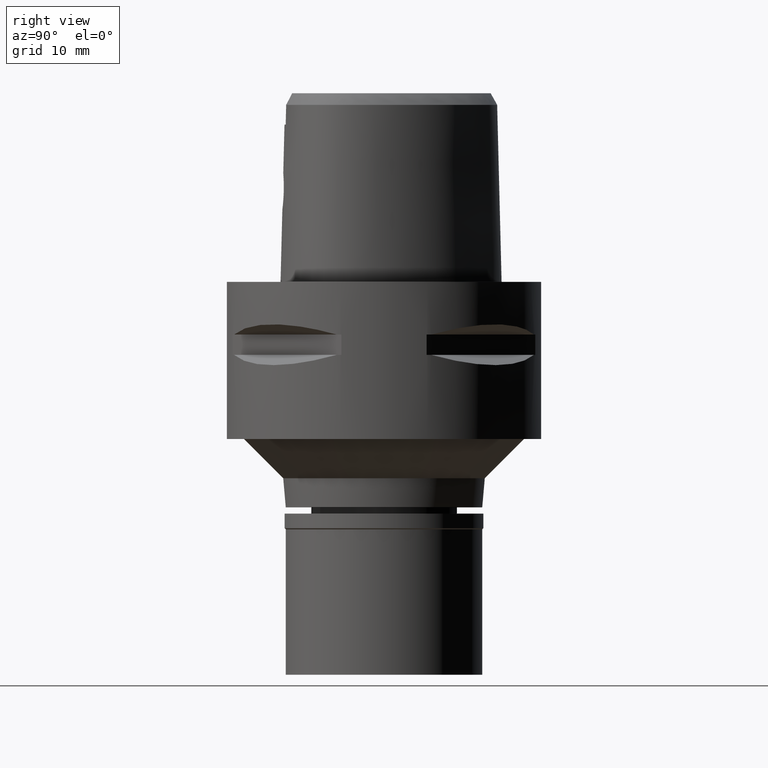
[diagram: clean part render]
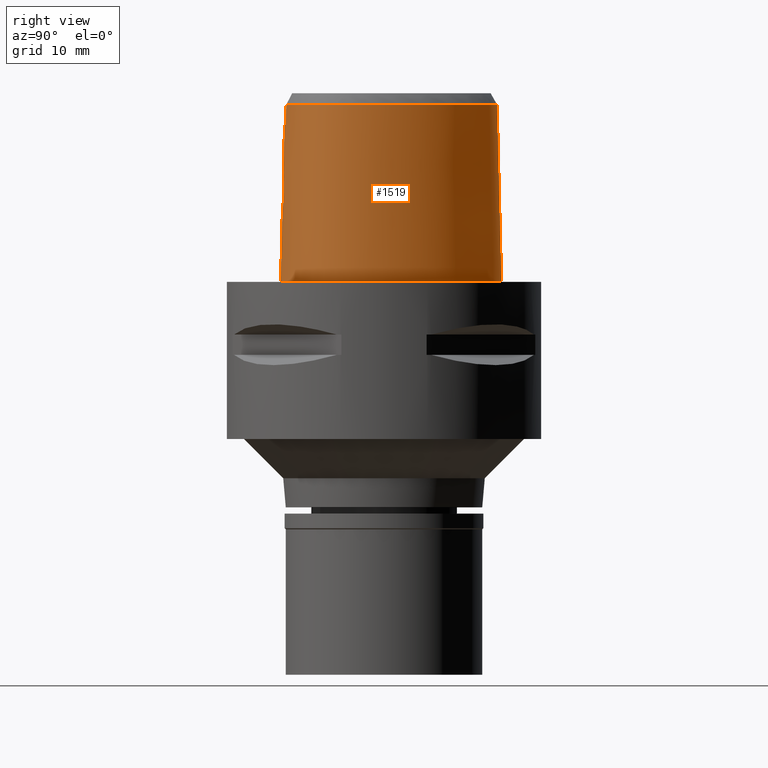
[diagram: same view with one face highlighted and labeled with its STEP entity id]
A machine part, right view. The second image highlights one B-rep face of the part: STEP entity #1519.
In plain terms, the highlighted face is a freeform B-spline surface patch.
Its self-contained STEP definition (entity closure, byte-faithful):
#6 = CARTESIAN_POINT ( 'NONE',  ( 1.645449367504256077, -12.77488553661844151, 13.10705414946526304 ) ) ;
#12 = VECTOR ( 'NONE', #1520, 1000.000000000000000 ) ;
#123 = CARTESIAN_POINT ( 'NONE',  ( 9.354901132059136870, -10.96475156047918276, 9.278273161166146477E-08 ) ) ;
#147 = CARTESIAN_POINT ( 'NONE',  ( 4.043386007319254460, -12.92392499770172165, 9.278273161166146477E-08 ) ) ;
#148 = ORIENTED_EDGE ( 'NONE', *, *, #325, .T. ) ;
#167 = CARTESIAN_POINT ( 'NONE',  ( 1.515894610913332219, 14.29262276005880494, 22.52071729251869314 ) ) ;
#170 = CARTESIAN_POINT ( 'NONE',  ( 2.295866016301516765, -12.76119921827123527, 11.35768768159920405 ) ) ;
#174 = CARTESIAN_POINT ( 'NONE',  ( 10.81142122104489545, -9.988463670041628717, 9.278273161166146477E-08 ) ) ;
#179 = CARTESIAN_POINT ( 'NONE',  ( 12.06000622300000025, -7.835334374217000075, 22.97118258146999992 ) ) ;
#190 = CARTESIAN_POINT ( 'NONE',  ( 10.46238780066888729, -9.543612998139410664, 22.52071729251869314 ) ) ;
#194 = CARTESIAN_POINT ( 'NONE',  ( 2.283291726770522168, -12.76615336162676861, 11.21397804798649567 ) ) ;
#200 = CARTESIAN_POINT ( 'NONE',  ( 13.04019920589999870, 2.897436282465999824, 7.356783964000999987 ) ) ;
#205 = CARTESIAN_POINT ( 'NONE',  ( 7.165542351178000757, -12.04243711982000065, -0.4504153447348000494 ) ) ;
#216 = CARTESIAN_POINT ( 'NONE',  ( 6.021703607729323338, 12.22251596526479389, 22.52071729251869314 ) ) ;
#222 = CARTESIAN_POINT ( 'NONE',  ( 1.030579243791999833, -12.61390748082000002, 22.97118258146999992 ) ) ;
#225 = CARTESIAN_POINT ( 'NONE',  ( 0.3814807434946000386, 14.79500491315999966, 7.356783964000999987 ) ) ;
#245 = CARTESIAN_POINT ( 'NONE',  ( 2.093435941504518283, -12.80154818977980646, 10.54659307499018617 ) ) ;
#271 = CARTESIAN_POINT ( 'NONE',  ( 2.225429295877777491, -12.75012210877847885, 12.08593180704479764 ) ) ;
#276 = CARTESIAN_POINT ( 'NONE',  ( 13.67906221776000031, -4.314970308252999764, 15.16398327273999946 ) ) ;
#286 = ORIENTED_EDGE ( 'NONE', *, *, #3007, .F. ) ;
#325 = EDGE_CURVE ( 'NONE', #766, #797, #754, .T. ) ;
#381 = CARTESIAN_POINT ( 'NONE',  ( -2.428699441135000389E-12, -13.16299999999999848, 3.877268876332999996E-13 ) ) ;
#386 = DIRECTION ( 'NONE',  ( 1.017277063185027972E-11, 0.02499051293165070395, -0.9996876883624270516 ) ) ;
#458 = EDGE_LOOP ( 'NONE', ( #1822, #148, #3056, #3613, #2048, #286, #814, #3739 ) ) ;
#459 = EDGE_CURVE ( 'NONE', #2812, #4135, #1844, .T. ) ;
#466 = CARTESIAN_POINT ( 'NONE',  ( 11.41870150433999953, -8.632189041672999608, 22.97118258146999992 ) ) ;
#503 = CARTESIAN_POINT ( 'NONE',  ( 11.50301489970413371, 6.641268748833836888, 9.278273161166146477E-08 ) ) ;
#519 = CARTESIAN_POINT ( 'NONE',  ( 1.567234804671691295, -12.86297445961075248, 9.816357320232388162 ) ) ;
#524 = CARTESIAN_POINT ( 'NONE',  ( 4.045377554445999557, -12.93507169194999840, -0.4504153447348000494 ) ) ;
#547 = CARTESIAN_POINT ( 'NONE',  ( 13.44334616192656107, -0.2854647381888676949, 22.52071729251869314 ) ) ;
#558 = CARTESIAN_POINT ( 'NONE',  ( 13.43219820684000076, -0.2874481322545999751, 22.97118258146999992 ) ) ;
#570 = CARTESIAN_POINT ( 'NONE',  ( 12.06912915025817234, -7.841969071234928812, 22.52071729251869314 ) ) ;
#573 = CARTESIAN_POINT ( 'NONE',  ( 0.8690674297353494504, -12.91199189238994904, 9.370505741518025289 ) ) ;
#581 = CARTESIAN_POINT ( 'NONE',  ( 8.879307741426000433, 9.717869208234999334, 15.16398327273999946 ) ) ;
#585 = CARTESIAN_POINT ( 'NONE',  ( 10.57640486392999968, -9.688930220618999556, 15.16398327273999946 ) ) ;
#598 = CARTESIAN_POINT ( 'NONE',  ( 1.677338744211443800, -12.85235830105390420, 9.924503536723280561 ) ) ;
#605 = CARTESIAN_POINT ( 'NONE',  ( 9.179411193077001485, 9.970937548269999340, -0.4504153447348000494 ) ) ;
#624 = CARTESIAN_POINT ( 'NONE',  ( 3.014424016408232099, -12.39773933397601091, 22.52071729251869314 ) ) ;
#627 = CARTESIAN_POINT ( 'NONE',  ( 2.186354490230978165, -12.78715814037339626, 10.76765892241432887 ) ) ;
#635 = CARTESIAN_POINT ( 'NONE',  ( 12.99424143630999851, -6.606040296244000132, 15.16398327273999946 ) ) ;
#654 = CARTESIAN_POINT ( 'NONE',  ( 0.5839158949180340841, -12.81370532052833511, 13.74793500496249621 ) ) ;
#673 = CARTESIAN_POINT ( 'NONE',  ( 2.568703243657000090, -12.45023755174000080, 22.52071758139999957 ) ) ;
#675 = CARTESIAN_POINT ( 'NONE',  ( -0.8641029033294000961, -12.96254434197000016, 7.356783964000999987 ) ) ;
#718 = CARTESIAN_POINT ( 'NONE',  ( 0.8979950358139429101, -12.80460331550576214, 13.61747047128255161 ) ) ;
#737 = CARTESIAN_POINT ( 'NONE',  ( 0.9140504597111306362, -12.80412716134029338, 13.61058950016384905 ) ) ;
#742 = LINE ( 'NONE', #2202, #2586 ) ;
#754 = B_SPLINE_CURVE_WITH_KNOTS ( 'NONE', 3,
 ( #1149, #2591, #167, #3438, #216, #2399, #4545, #1698, #547, #2377, #3460, #1284, #3823, #3485, #570, #1668, #190, #1643, #4618, #975, #624, #3844 ),
 .UNSPECIFIED., .F., .F.,
 ( 4, 1, 1, 1, 1, 1, 1, 1, 1, 1, 1, 1, 1, 1, 1, 1, 1, 1, 1, 4 ),
 ( 0.0000000000000000000, 0.04407253041122746740, 0.08814506081991639597, 0.1762901216375058477, 0.2644351824549895369, 0.3525802432724731705, 0.4407253040900626084, 0.5288703649075462421, 0.5729428953163409055, 0.6170154257250298757, 0.6610879561338246502, 0.6831242213382220374, 0.7051604865426193136, 0.7271967517470168119, 0.7492330169513081728, 0.7933055473601030583, 0.8373780777688977217, 0.8814506081775865809, 0.9695956689951972240, 1.000000000000000000 ),
 .UNSPECIFIED. ) ;
#766 = VERTEX_POINT ( 'NONE', #1010 ) ;
#768 = CARTESIAN_POINT ( 'NONE',  ( 2.568703243657000090, -12.45023755174000080, 22.52071758139999957 ) ) ;
#797 = VERTEX_POINT ( 'NONE', #673 ) ;
#814 = ORIENTED_EDGE ( 'NONE', *, *, #2101, .T. ) ;
#816 = CARTESIAN_POINT ( 'NONE',  ( 2.592189410844740749, -12.48967527515265097, 20.84023924574000119 ) ) ;
#885 = CARTESIAN_POINT ( 'NONE',  ( 2.043463385705227342, -12.80871364514175603, 10.44374245704670123 ) ) ;
#887 = CARTESIAN_POINT ( 'NONE',  ( 3.782076372786112639, 14.19393593538030984, 9.278273161166146477E-08 ) ) ;
#892 = CARTESIAN_POINT ( 'NONE',  ( 1.553816178241999912, 14.47371237231000052, 15.16398327273999946 ) ) ;
#908 = CARTESIAN_POINT ( 'NONE',  ( 0.1433742188724826394, -12.93301545397000218, 9.200000000000001066 ) ) ;
#913 = CARTESIAN_POINT ( 'NONE',  ( 0.0000000000000000000, -12.81802318095999915, 13.79999999999999893 ) ) ;
#915 = CARTESIAN_POINT ( 'NONE',  ( 13.59718074224999995, -2.623279432799999977, 22.97118258146999992 ) ) ;
#933 = CARTESIAN_POINT ( 'NONE',  ( 2.299969345384927699, -12.75813322093607027, 11.46185367828802271 ) ) ;
#935 = CARTESIAN_POINT ( 'NONE',  ( 12.52522392570460674, -8.173666404884023962, 9.278273161166146477E-08 ) ) ;
#940 = CARTESIAN_POINT ( 'NONE',  ( 14.01182759924999921, -0.1843230758381999845, -0.4504153447348000494 ) ) ;
#955 = CARTESIAN_POINT ( 'NONE',  ( 1.706514786403980244, -12.77195056588757538, 13.04216762706126786 ) ) ;
#958 = CARTESIAN_POINT ( 'NONE',  ( 1.631981571678658982, 14.84698124771133010, 9.278273161166146477E-08 ) ) ;
#962 = CARTESIAN_POINT ( 'NONE',  ( 1.513572609095000132, 14.28153433626999913, 22.97118258146999992 ) ) ;
#975 = CARTESIAN_POINT ( 'NONE',  ( 4.736458210706008032, -12.13940339171074356, 22.52071729251869314 ) ) ;
#979 = CARTESIAN_POINT ( 'NONE',  ( 1.727977423403443735, -12.84715031218481052, 9.980214359576860872 ) ) ;
#985 = CARTESIAN_POINT ( 'NONE',  ( 0.3611446948284000036, 14.40383093312000007, 22.97118258146999992 ) ) ;
#989 = CARTESIAN_POINT ( 'NONE',  ( 10.81840190640000010, -9.997360705080000187, -0.4504153447348000494 ) ) ;
#1008 = CARTESIAN_POINT ( 'NONE',  ( 0.9381876973367959671, -12.80340306008588414, 13.60008248094714567 ) ) ;
#1010 = CARTESIAN_POINT ( 'NONE',  ( -6.268853442822000267E-11, 14.40001989798000182, 22.52071729252999788 ) ) ;
#1051 = CARTESIAN_POINT ( 'NONE',  ( 1.661097454703045484, -12.77413506297896006, 13.09087457277836464 ) ) ;
#1149 = CARTESIAN_POINT ( 'NONE',  ( -6.268853442822000267E-11, 14.40001989798000182, 22.52071729252999788 ) ) ;
#1222 = CARTESIAN_POINT ( 'NONE',  ( 0.5439938571807775292, 14.96299999768769418, 9.278273161166146477E-08 ) ) ;
#1242 = CARTESIAN_POINT ( 'NONE',  ( 2.192541761835601122, -12.75060236087981025, 12.19586171828266252 ) ) ;
#1248 = CARTESIAN_POINT ( 'NONE',  ( 6.014684035619000113, 12.21358546212000107, 22.97118258146999992 ) ) ;
#1265 = CARTESIAN_POINT ( 'NONE',  ( 2.127531297605167016, -12.75242672595457449, 12.37385599951378090 ) ) ;
#1271 = CARTESIAN_POINT ( 'NONE',  ( 13.79295334114000049, -2.621895083090000078, 15.16398327273999946 ) ) ;
#1284 = CARTESIAN_POINT ( 'NONE',  ( 13.19588016803238872, -5.576003003767366906, 22.52071729251869314 ) ) ;
#1287 = CARTESIAN_POINT ( 'NONE',  ( 0.8463630567564569551, -12.91308736094397780, 9.361346884265588031 ) ) ;
#1291 = CARTESIAN_POINT ( 'NONE',  ( 1.048704669316999905, -13.00466321418999982, 7.356783964000999987 ) ) ;
#1295 = CARTESIAN_POINT ( 'NONE',  ( 6.379661314922000059, 12.67792013799000017, -0.4504153447348000494 ) ) ;
#1319 = CARTESIAN_POINT ( 'NONE',  ( 1.869424949172659334, -12.83134063688183524, 10.15811452068828302 ) ) ;
#1327 = CARTESIAN_POINT ( 'NONE',  ( -0.4356961644967000113, 14.57076311307999816, 15.16398327273999946 ) ) ;
#1340 = CARTESIAN_POINT ( 'NONE',  ( 0.8728598500685538220, -12.66303358566618442, 20.00000039696023890 ) ) ;
#1343 = CARTESIAN_POINT ( 'NONE',  ( 1.823556130522963059, -12.83669982089730865, 10.09632717221551523 ) ) ;
#1350 = CARTESIAN_POINT ( 'NONE',  ( 13.56059767484000034, -5.684126888336000327, 7.356783964000999987 ) ) ;
#1355 = CARTESIAN_POINT ( 'NONE',  ( 9.167104960737999519, -10.63410046635999961, 15.16398327273999946 ) ) ;
#1372 = FACE_OUTER_BOUND ( 'NONE', #458, .T. ) ;
#1398 = CARTESIAN_POINT ( 'NONE',  ( -0.5764111319794000821, -12.97358041108000037, 7.356783964000999987 ) ) ;
#1409 = CARTESIAN_POINT ( 'NONE',  ( 6.965032134138999353, -11.48890063882999968, 22.97118258146999992 ) ) ;
#1519 = ADVANCED_FACE ( 'NONE', ( #1372 ), #2034, .T. ) ;
#1520 = DIRECTION ( 'NONE',  ( -2.298296151342910266E-13, -0.02499051295424905769, -0.9996876883618621701 ) ) ;
#1587 = CARTESIAN_POINT ( 'NONE',  ( 10.45540634269999991, -9.534714978388000972, 22.97118258146999992 ) ) ;
#1605 = CARTESIAN_POINT ( 'NONE',  ( 7.161686384671405392, -12.03179218530048011, 9.278273161166146477E-08 ) ) ;
#1624 = CARTESIAN_POINT ( 'NONE',  ( 0.6955382435542795116, -12.91959727455216544, 9.307353099922016426 ) ) ;
#1627 = CARTESIAN_POINT ( 'NONE',  ( 13.73754041215649835, -5.736583202463870101, 9.278273161166146477E-08 ) ) ;
#1631 = CARTESIAN_POINT ( 'NONE',  ( 13.35152085062000005, -6.764911736249999308, -0.4504153447348000494 ) ) ;
#1643 = CARTESIAN_POINT ( 'NONE',  ( 9.075996545096728596, -10.47368666716278263, 22.52071729251869314 ) ) ;
#1653 = CARTESIAN_POINT ( 'NONE',  ( 11.34294640233999907, 6.548859653825999771, 7.356783964000999987 ) ) ;
#1668 = CARTESIAN_POINT ( 'NONE',  ( 11.42690036410719046, -8.639965949823052327, 22.52071729251869314 ) ) ;
#1671 = CARTESIAN_POINT ( 'NONE',  ( 1.362992585940593582, -12.88053689247976408, 9.645493491656409901 ) ) ;
#1679 = CARTESIAN_POINT ( 'NONE',  ( -0.3063166190738000338, 14.96966817284999962, -0.4504153447348000494 ) ) ;
#1698 = CARTESIAN_POINT ( 'NONE',  ( 12.68166859856818185, 2.767886240359058281, 22.52071729251869314 ) ) ;
#1700 = CARTESIAN_POINT ( 'NONE',  ( 0.5851900645696758163, -12.92362272837751824, 9.274365687045239781 ) ) ;
#1707 = CARTESIAN_POINT ( 'NONE',  ( 12.67101795865000113, 2.764037779944000128, 22.97118258146999992 ) ) ;
#1726 = CARTESIAN_POINT ( 'NONE',  ( 2.060625410429664850, -12.80630362429435820, 10.47760979869173781 ) ) ;
#1750 = CARTESIAN_POINT ( 'NONE',  ( 0.9948637765788020948, -12.80164440044871910, 13.57424493532907839 ) ) ;
#1781 = CARTESIAN_POINT ( 'NONE',  ( 1.664811294063999892E-10, 14.96299999994999830, 3.883375102968000129E-13 ) ) ;
#1794 = CARTESIAN_POINT ( 'NONE',  ( 1.523028941585173435, -12.78074262657525750, 13.23006938842581448 ) ) ;
#1822 = ORIENTED_EDGE ( 'NONE', *, *, #2753, .F. ) ;
#1844 = B_SPLINE_CURVE_WITH_KNOTS ( 'NONE', 3,
 ( #3061, #4595, #1340, #2774 ),
 .UNSPECIFIED., .F., .F.,
 ( 4, 4 ),
 ( 0.0000000000000000000, 1.000000000000000000 ),
 .UNSPECIFIED. ) ;
#1874 = CARTESIAN_POINT ( 'NONE',  ( -3.136064137311999915E-13, -12.93301545397000041, 9.199999999999999289 ) ) ;
#1955 = CARTESIAN_POINT ( 'NONE',  ( 11.83679699034223454, -9.028767381211451948, 9.278273161166146477E-08 ) ) ;
#1978 = CARTESIAN_POINT ( 'NONE',  ( 1.989864840159478510, -12.81604061845430742, 10.34408982141709643 ) ) ;
#1981 = CARTESIAN_POINT ( 'NONE',  ( 4.010857411359999070, -12.74186236477999934, 7.356783964000999987 ) ) ;
#1985 = CARTESIAN_POINT ( 'NONE',  ( 0.3916487678276999729, 14.99059190318999946, -0.4504153447348000494 ) ) ;
#2004 = CARTESIAN_POINT ( 'NONE',  ( 0.8145125421449991299, -12.91457943454069834, 9.348898823461963659 ) ) ;
#2011 = CARTESIAN_POINT ( 'NONE',  ( 13.17288114345999972, -6.685476016247000608, 7.356783964000999987 ) ) ;
#2026 = CARTESIAN_POINT ( 'NONE',  ( 1.854517083051349546, -12.76478398343997789, 12.86296390897511621 ) ) ;
#2028 = CARTESIAN_POINT ( 'NONE',  ( 13.21414036827126104, 2.960287499207732598, 9.278273161166146477E-08 ) ) ;
#2031 = CARTESIAN_POINT ( 'NONE',  ( 11.17307779075999896, 6.450792857887000409, 15.16398327273999946 ) ) ;
#2034 = B_SPLINE_SURFACE_WITH_KNOTS ( 'NONE', 3, 3, ( 
 ( #2429, #675, #2808, #2107 ),
 ( #3190, #1398, #2185, #2162 ),
 ( #2917, #1291, #3466, #222 ),
 ( #524, #1981, #4529, #2708 ),
 ( #205, #4682, #3172, #1409 ),
 ( #2866, #4633, #1355, #3607 ),
 ( #989, #3528, #585, #1587 ),
 ( #4444, #3322, #3236, #466 ),
 ( #3795, #4143, #4372, #179 ),
 ( #3145, #4136, #4604, #3071 ),
 ( #1631, #2011, #635, #3782 ),
 ( #3853, #1350, #2364, #2059 ),
 ( #2712, #3496, #276, #3810 ),
 ( #3525, #4534, #1271, #915 ),
 ( #940, #3047, #4159, #558 ),
 ( #3447, #200, #2435, #1707 ),
 ( #2687, #1653, #2031, #3093 ),
 ( #605, #4554, #581, #4215 ),
 ( #1295, #2408, #2388, #1248 ),
 ( #4511, #2763, #2782, #3832 ),
 ( #4238, #3470, #892, #962 ),
 ( #1985, #225, #4189, #985 ),
 ( #1679, #2338, #3882, #2737 ),
 ( #3121, #4582, #1327, #2091 ) ),
 .UNSPECIFIED., .F., .F., .F.,
 ( 4, 1, 1, 1, 1, 1, 1, 1, 1, 1, 1, 1, 1, 1, 1, 1, 1, 1, 1, 1, 1, 4 ),
 ( 4, 4 ),
 ( -0.01796457239588999943, 0.0000000000000000000, 0.08333333333318000691, 0.1666666666664000096, 0.2083333333328999948, 0.2499999999995000111, 0.2916666666661000273, 0.3124999999992999489, 0.3333333333326000125, 0.3541666666659000207, 0.3749999999991999733, 0.4166666666658000451, 0.4583333333323000303, 0.4999999999988999910, 0.5833333333319999925, 0.6666666666652000250, 0.7499999999983000265, 0.8333333333314000280, 0.9166666666646000605, 0.9583333333311000457, 1.000000000000000000, 1.011713651438000072 ),
 ( -3.832166176400999891E-08, 1.000001954405000060 ),
 .UNSPECIFIED. ) ;
#2048 = ORIENTED_EDGE ( 'NONE', *, *, #3761, .T. ) ;
#2059 = CARTESIAN_POINT ( 'NONE',  ( 13.18504573783999945, -5.572791036539000764, 22.97118258146999992 ) ) ;
#2082 = CARTESIAN_POINT ( 'NONE',  ( 2.243503838786538029, -12.75015969206864597, 12.01219160939765018 ) ) ;
#2091 = CARTESIAN_POINT ( 'NONE',  ( -0.4238406399065999808, 14.37596217717999814, 22.97118258146999992 ) ) ;
#2101 = EDGE_CURVE ( 'NONE', #2286, #3564, #2599, .T. ) ;
#2104 = CARTESIAN_POINT ( 'NONE',  ( 0.2807011223767909569, -12.81802318096000093, 13.80000000000000071 ) ) ;
#2107 = CARTESIAN_POINT ( 'NONE',  ( -0.8491476844155999570, -12.57247808542999934, 22.97118258146999992 ) ) ;
#2162 = CARTESIAN_POINT ( 'NONE',  ( -0.5664558416959000198, -12.58333764626999951, 22.97118258146999992 ) ) ;
#2167 = CARTESIAN_POINT ( 'NONE',  ( 0.0000000000000000000, -12.81802318095999915, 13.79999999999999893 ) ) ;
#2185 = CARTESIAN_POINT ( 'NONE',  ( -0.5714334868375999799, -12.77845902868000039, 15.16398327273999946 ) ) ;
#2195 = CARTESIAN_POINT ( 'NONE',  ( 1.142660624069036901, -12.79660889248690481, 13.49746603115685062 ) ) ;
#2202 = CARTESIAN_POINT ( 'NONE',  ( -6.268853442822000267E-11, 14.40001989798000182, 22.52071729252999788 ) ) ;
#2276 = CARTESIAN_POINT ( 'NONE',  ( -3.136064137311999915E-13, -12.93301545397000041, 9.199999999999999289 ) ) ;
#2286 = VERTEX_POINT ( 'NONE', #2276 ) ;
#2333 = CARTESIAN_POINT ( 'NONE',  ( 2.133463040823781576, -12.75222410475733348, 12.35927822234133089 ) ) ;
#2335 = CARTESIAN_POINT ( 'NONE',  ( 1.664811294063999892E-10, 14.96299999994999830, 3.883375102968000129E-13 ) ) ;
#2338 = CARTESIAN_POINT ( 'NONE',  ( -0.2984610418588999892, 14.77461941231999987, 7.356783964000999987 ) ) ;
#2356 = CARTESIAN_POINT ( 'NONE',  ( 1.493711519974061597, -12.86960986600500334, 9.750504243735699461 ) ) ;
#2359 = CARTESIAN_POINT ( 'NONE',  ( 1.347795335771720726, -13.16299999767667295, 9.278273161166146477E-08 ) ) ;
#2364 = CARTESIAN_POINT ( 'NONE',  ( 13.37282170633999989, -5.628458962437000501, 15.16398327273999946 ) ) ;
#2377 = CARTESIAN_POINT ( 'NONE',  ( 13.60847656765939107, -2.623199557614614541, 22.52071729251869314 ) ) ;
#2383 = CARTESIAN_POINT ( 'NONE',  ( 14.00068087786903526, -0.1863062504085772064, 9.278273161166146477E-08 ) ) ;
#2388 = CARTESIAN_POINT ( 'NONE',  ( 6.136343128720000983, 12.36836368740999959, 15.16398327273999946 ) ) ;
#2399 = CARTESIAN_POINT ( 'NONE',  ( 8.737913805847986382, 9.598635895951684205, 22.52071729251869314 ) ) ;
#2401 = CARTESIAN_POINT ( 'NONE',  ( 1.460959802937677354, -12.87242665810233255, 9.723111638592694561 ) ) ;
#2408 = CARTESIAN_POINT ( 'NONE',  ( 6.258002221821000077, 12.52314191269999988, 7.356783964000999987 ) ) ;
#2425 = CARTESIAN_POINT ( 'NONE',  ( 2.300118713600480813, -12.75356737073905222, 11.64310838016459115 ) ) ;
#2429 = CARTESIAN_POINT ( 'NONE',  ( -0.8715805127864000301, -13.15757747023999968, -0.4504153447348000494 ) ) ;
#2435 = CARTESIAN_POINT ( 'NONE',  ( 12.85560858227000125, 2.830737031205000420, 15.16398327273999946 ) ) ;
#2510 = CARTESIAN_POINT ( 'NONE',  ( -4.221675219619160308E-09, -12.76635998234183766, 15.86666680636480997 ) ) ;
#2536 = VERTEX_POINT ( 'NONE', #1781 ) ;
#2586 = VECTOR ( 'NONE', #386, 1000.000000000000114 ) ;
#2591 = CARTESIAN_POINT ( 'NONE',  ( 0.5039711947966580841, 14.40001989753295852, 22.52071729251869314 ) ) ;
#2599 = LINE ( 'NONE', #1874, #12 ) ;
#2615 = CARTESIAN_POINT ( 'NONE',  ( 2.580559080356283008, -12.46988838676011468, 21.68047841357000038 ) ) ;
#2680 = CARTESIAN_POINT ( 'NONE',  ( 2.174655026127922497, -12.75097664368962391, 12.25065586503908754 ) ) ;
#2687 = CARTESIAN_POINT ( 'NONE',  ( 11.51281501393000006, 6.646926449765000022, -0.4504153447348000494 ) ) ;
#2704 = CARTESIAN_POINT ( 'NONE',  ( 1.298081316895610016, -12.88549019284528541, 9.599832172041272926 ) ) ;
#2708 = CARTESIAN_POINT ( 'NONE',  ( 3.941817125188999960, -12.35544371042000122, 22.97118258146999992 ) ) ;
#2712 = CARTESIAN_POINT ( 'NONE',  ( 14.06716929224000090, -4.370330523021999980, -0.4504153447348000494 ) ) ;
#2730 = CARTESIAN_POINT ( 'NONE',  ( 2.021153119200966852, -12.75677398847741451, 12.60794142556723152 ) ) ;
#2737 = CARTESIAN_POINT ( 'NONE',  ( -0.2827498874289999797, 14.38452189126000036, 22.97118258146999992 ) ) ;
#2753 = EDGE_CURVE ( 'NONE', #766, #2536, #742, .T. ) ;
#2757 = CARTESIAN_POINT ( 'NONE',  ( 2.151238930189971921, -12.75164808129625094, 12.31414270909407094 ) ) ;
#2763 = CARTESIAN_POINT ( 'NONE',  ( 3.702933643531999941, 14.02580466383000157, 7.356783964000999987 ) ) ;
#2774 = CARTESIAN_POINT ( 'NONE',  ( -1.260417588442999891E-08, -12.66301535847000004, 19.99999996345999875 ) ) ;
#2776 = CARTESIAN_POINT ( 'NONE',  ( 2.293385494867744345, -12.76236463091154150, 11.32198205547385506 ) ) ;
#2782 = CARTESIAN_POINT ( 'NONE',  ( 3.618945439998999980, 13.84737963870000144, 15.16398327273999946 ) ) ;
#2804 = CARTESIAN_POINT ( 'NONE',  ( 0.8913097515743282351, -12.80479973338802147, 13.62029918993366273 ) ) ;
#2808 = CARTESIAN_POINT ( 'NONE',  ( -0.8566252938724999710, -12.76751121370000064, 15.16398327273999946 ) ) ;
#2812 = VERTEX_POINT ( 'NONE', #3375 ) ;
#2856 = CARTESIAN_POINT ( 'NONE',  ( 1.684262171805987807, -12.77302273728515480, 13.06656659278265664 ) ) ;
#2866 = CARTESIAN_POINT ( 'NONE',  ( 9.360479237340998182, -10.97457288218999949, -0.4504153447348000494 ) ) ;
#2903 = CARTESIAN_POINT ( 'NONE',  ( 1.636146738088227970, -12.77533106805133656, 13.11651252606781881 ) ) ;
#2905 = EDGE_CURVE ( 'NONE', #2812, #797, #4349, .T. ) ;
#2917 = CARTESIAN_POINT ( 'NONE',  ( 1.057767382079999985, -13.20004108087000105, -0.4504153447348000494 ) ) ;
#3007 = EDGE_CURVE ( 'NONE', #2286, #4301, #3663, .T. ) ;
#3038 = CARTESIAN_POINT ( 'NONE',  ( 2.603594716343999860, -12.50959097760000027, 20.00000007790999845 ) ) ;
#3047 = CARTESIAN_POINT ( 'NONE',  ( 13.81861780178000032, -0.2186980946436999917, 7.356783964000999987 ) ) ;
#3056 = ORIENTED_EDGE ( 'NONE', *, *, #2905, .F. ) ;
#3061 = CARTESIAN_POINT ( 'NONE',  ( 2.603594716343999860, -12.50959097760000027, 20.00000007790999845 ) ) ;
#3065 = CARTESIAN_POINT ( 'NONE',  ( 2.273024517919945531, -12.76906917249596063, 11.14078746314901380 ) ) ;
#3071 = CARTESIAN_POINT ( 'NONE',  ( 12.47264427492000038, -7.201084528873999524, 22.97118258146999992 ) ) ;
#3087 = CARTESIAN_POINT ( 'NONE',  ( 1.617438359909708412, -12.85819787466013864, 9.864768670370322567 ) ) ;
#3089 = CARTESIAN_POINT ( 'NONE',  ( 14.17320396358993762, -2.619206250016818505, 9.278273161166146477E-08 ) ) ;
#3093 = CARTESIAN_POINT ( 'NONE',  ( 11.00320917918000063, 6.352726061948000158, 22.97118258146999992 ) ) ;
#3114 = CARTESIAN_POINT ( 'NONE',  ( -3.136064137311999915E-13, -12.93301545397000041, 9.199999999999999289 ) ) ;
#3121 = CARTESIAN_POINT ( 'NONE',  ( -0.4594072136769000170, 14.96036498487000088, -0.4504153447348000494 ) ) ;
#3139 = CARTESIAN_POINT ( 'NONE',  ( 0.7506047745461715825, -12.91741682039676320, 9.325319817459782001 ) ) ;
#3145 = CARTESIAN_POINT ( 'NONE',  ( 12.98066718630000160, -7.494391694286999694, -0.4504153447348000494 ) ) ;
#3161 = CARTESIAN_POINT ( 'NONE',  ( 1.542743282436297658, -12.86521460690171637, 9.794004530773841921 ) ) ;
#3172 = CARTESIAN_POINT ( 'NONE',  ( 7.031868873152000710, -11.67341279915999941, 15.16398327273999946 ) ) ;
#3173 = CARTESIAN_POINT ( 'NONE',  ( -1.260417588442999891E-08, -12.66301535847000004, 19.99999996345999875 ) ) ;
#3175 = CARTESIAN_POINT ( 'NONE',  ( -1.260417588442999891E-08, -12.66301535847000004, 19.99999996345999875 ) ) ;
#3185 = CARTESIAN_POINT ( 'NONE',  ( 1.408052784001031954, -12.78604258398207527, 13.32559425419478671 ) ) ;
#3190 = CARTESIAN_POINT ( 'NONE',  ( -0.5813887771210999311, -13.16870179349000125, -0.4504153447348000494 ) ) ;
#3236 = CARTESIAN_POINT ( 'NONE',  ( 11.56079931714999987, -8.766973837354999688, 15.16398327273999946 ) ) ;
#3296 = EDGE_CURVE ( 'NONE', #3564, #2536, #4399, .T. ) ;
#3322 = CARTESIAN_POINT ( 'NONE',  ( 11.70289712996000020, -8.901758633035999679, 7.356783964000999987 ) ) ;
#3375 = CARTESIAN_POINT ( 'NONE',  ( 2.603594716343999860, -12.50959097760000027, 20.00000007790999845 ) ) ;
#3396 = CARTESIAN_POINT ( 'NONE',  ( -2.428699441135000389E-12, -13.16299999999999848, 3.877268876332999996E-13 ) ) ;
#3420 = CARTESIAN_POINT ( 'NONE',  ( 2.108316059763357231, -12.79932254745118136, 10.57985993983337281 ) ) ;
#3438 = CARTESIAN_POINT ( 'NONE',  ( 3.539803247036101386, 13.67924950644984428, 22.52071729251869314 ) ) ;
#3441 = CARTESIAN_POINT ( 'NONE',  ( 0.2902039409409815085, -12.93122636338095965, 9.213445385782284447 ) ) ;
#3447 = CARTESIAN_POINT ( 'NONE',  ( 13.22478982951999882, 2.964135533727000116, -0.4504153447348000494 ) ) ;
#3460 = CARTESIAN_POINT ( 'NONE',  ( 13.49620531829855707, -4.288887307216343814, 22.52071729251869314 ) ) ;
#3463 = CARTESIAN_POINT ( 'NONE',  ( 1.591641127645525344, -12.86067053571080088, 9.839636682121142286 ) ) ;
#3466 = CARTESIAN_POINT ( 'NONE',  ( 1.039641956555000135, -12.80928534750000125, 15.16398327273999946 ) ) ;
#3470 = CARTESIAN_POINT ( 'NONE',  ( 1.594059747388999915, 14.66589040834999835, 7.356783964000999987 ) ) ;
#3485 = CARTESIAN_POINT ( 'NONE',  ( 12.48241502960077653, -7.206725676734023978, 22.52071729251869314 ) ) ;
#3489 = CARTESIAN_POINT ( 'NONE',  ( 1.607887411604786321, -12.85912041386439952, 9.855364509025399400 ) ) ;
#3496 = CARTESIAN_POINT ( 'NONE',  ( 13.87311575500000060, -4.342650415637999473, 7.356783964000999987 ) ) ;
#3519 = CARTESIAN_POINT ( 'NONE',  ( 0.5113403790313084674, -12.92585909161381963, 9.256304699929911450 ) ) ;
#3525 = CARTESIAN_POINT ( 'NONE',  ( 14.18449853893000068, -2.619126383671000369, -0.4504153447348000494 ) ) ;
#3528 = CARTESIAN_POINT ( 'NONE',  ( 10.69740338517000033, -9.843145462848999827, 7.356783964000999987 ) ) ;
#3544 = CARTESIAN_POINT ( 'NONE',  ( 0.0000000000000000000, -12.81802318095999915, 13.79999999999999893 ) ) ;
#3564 = VERTEX_POINT ( 'NONE', #381 ) ;
#3607 = CARTESIAN_POINT ( 'NONE',  ( 9.070417822436999344, -10.46386425843999923, 22.97118258146999992 ) ) ;
#3613 = ORIENTED_EDGE ( 'NONE', *, *, #459, .T. ) ;
#3617 = CARTESIAN_POINT ( 'NONE',  ( 1.043973006517971314, -12.80001853782794541, 13.54975762555421781 ) ) ;
#3663 = B_SPLINE_CURVE_WITH_KNOTS ( 'NONE', 3,
 ( #3114, #908, #3441, #3519, #1700, #1624, #3139, #2004, #1287, #4181, #573, #3848, #4598, #4231, #2704, #1671, #2401, #2356, #3161, #519, #3463, #3489, #3087, #598, #979, #1343, #1319, #3875, #1978, #885, #1726, #245, #3420, #627, #3802, #3065, #194, #2776, #170, #4526, #933, #2425, #4548, #2082, #271, #1242, #2680, #2757, #4130, #2333, #3776, #1265, #4153, #2730, #3826, #2026, #4575, #4208, #955, #2856, #1051, #6, #2903, #1794, #3185, #4620, #2195, #3617, #1750, #1008, #737, #718, #2804, #654, #2104, #3544 ),
 .UNSPECIFIED., .F., .F.,
 ( 4, 2, 2, 1, 1, 1, 2, 2, 2, 2, 2, 1, 2, 2, 2, 2, 2, 2, 2, 2, 2, 2, 2, 2, 2, 1, 1, 1, 2, 2, 2, 2, 2, 1, 2, 2, 2, 2, 1, 1, 2, 2, 4 ),
 ( 0.0000000000000000000, 0.06250000000001226796, 0.09375000000001831868, 0.1093750000000213440, 0.1171875000000228567, 0.1210937500000236478, 0.1230468750000240641, 0.1250000000000244804, 0.1875000000000280331, 0.2187500000000296152, 0.2343750000000303646, 0.2421875000000305034, 0.2460937500000305866, 0.2500000000000306977, 0.2812500000000290878, 0.3125000000000275335, 0.3437500000000259792, 0.3593750000000252576, 0.3750000000000244804, 0.4375000000000225930, 0.4687500000000212608, 0.4843750000000203171, 0.5000000000000193179, 0.5625000000000175415, 0.5937500000000167644, 0.6093750000000158762, 0.6171875000000158762, 0.6210937500000155431, 0.6230468750000154321, 0.6250000000000152101, 0.6875000000000143219, 0.7187500000000142109, 0.7343750000000140998, 0.7421875000000138778, 0.7460937500000137668, 0.7500000000000136557, 0.8125000000000131006, 0.8437500000000129896, 0.8593750000000127676, 0.8671875000000127676, 0.8710937500000125455, 0.8750000000000123235, 1.000000000000000000 ),
 .UNSPECIFIED. ) ;
#3665 = B_SPLINE_CURVE_WITH_KNOTS ( 'NONE', 3,
 ( #3175, #4374, #2510, #2167 ),
 .UNSPECIFIED., .F., .F.,
 ( 4, 4 ),
 ( 0.0000000000000000000, 1.000000000000000000 ),
 .UNSPECIFIED. ) ;
#3739 = ORIENTED_EDGE ( 'NONE', *, *, #3296, .T. ) ;
#3761 = EDGE_CURVE ( 'NONE', #4135, #4301, #3665, .T. ) ;
#3776 = CARTESIAN_POINT ( 'NONE',  ( 2.129813370590860178, -12.75234797374024254, 12.36828487053704428 ) ) ;
#3778 = CARTESIAN_POINT ( 'NONE',  ( 13.34121471154547400, -6.760328905305790670, 9.278273161166146477E-08 ) ) ;
#3782 = CARTESIAN_POINT ( 'NONE',  ( 12.81560172915999907, -6.526604576240000455, 22.97118258146999992 ) ) ;
#3795 = CARTESIAN_POINT ( 'NONE',  ( 12.53434584336000057, -8.180300367663001282, -0.4504153447348000494 ) ) ;
#3802 = CARTESIAN_POINT ( 'NONE',  ( 2.230462555877945618, -12.77898657628070289, 10.91885181785458414 ) ) ;
#3810 = CARTESIAN_POINT ( 'NONE',  ( 13.48500868052000179, -4.287290200869000145, 22.97118258146999992 ) ) ;
#3823 = CARTESIAN_POINT ( 'NONE',  ( 12.82590900890492946, -6.531187914406431538, 22.52071729251869314 ) ) ;
#3826 = CARTESIAN_POINT ( 'NONE',  ( 1.900109215926302886, -12.76256732845278030, 12.79816543667896589 ) ) ;
#3832 = CARTESIAN_POINT ( 'NONE',  ( 3.534957236466000019, 13.66895461358000041, 22.97118258146999992 ) ) ;
#3844 = CARTESIAN_POINT ( 'NONE',  ( 2.568703243657000090, -12.45023755174000080, 22.52071758139999957 ) ) ;
#3848 = CARTESIAN_POINT ( 'NONE',  ( 0.8747345760825460115, -12.91171422237656863, 9.372829819806563378 ) ) ;
#3853 = CARTESIAN_POINT ( 'NONE',  ( 13.74837364334000078, -5.739794814235000153, -0.4504153447348000494 ) ) ;
#3875 = CARTESIAN_POINT ( 'NONE',  ( 1.951316193587585346, -12.82105448168982953, 10.28025765310058581 ) ) ;
#3882 = CARTESIAN_POINT ( 'NONE',  ( -0.2906054646439000244, 14.57957065179000011, 15.16398327273999946 ) ) ;
#4130 = CARTESIAN_POINT ( 'NONE',  ( 2.138891804679659892, -12.75204249368168341, 12.34575813156931723 ) ) ;
#4132 = CARTESIAN_POINT ( 'NONE',  ( 12.97089751291481541, -7.488751170713280558, 9.278273161166146477E-08 ) ) ;
#4135 = VERTEX_POINT ( 'NONE', #3173 ) ;
#4136 = CARTESIAN_POINT ( 'NONE',  ( 12.81132621583999942, -7.396622639149000200, 7.356783964000999987 ) ) ;
#4143 = CARTESIAN_POINT ( 'NONE',  ( 12.37623263656999839, -8.065311703180999103, 7.356783964000999987 ) ) ;
#4153 = CARTESIAN_POINT ( 'NONE',  ( 2.080890816681156164, -12.75405392847548747, 12.48689062667910221 ) ) ;
#4155 = CARTESIAN_POINT ( 'NONE',  ( 9.170754360957687368, 9.963637498495966582, 9.278273161166146477E-08 ) ) ;
#4159 = CARTESIAN_POINT ( 'NONE',  ( 13.62540800431000143, -0.2530731134491000511, 15.16398327273999946 ) ) ;
#4181 = CARTESIAN_POINT ( 'NONE',  ( 0.8599890503360013705, -12.91243217640209018, 9.366823301356239639 ) ) ;
#4189 = CARTESIAN_POINT ( 'NONE',  ( 0.3713127191614999933, 14.59941792314000075, 15.16398327273999946 ) ) ;
#4208 = CARTESIAN_POINT ( 'NONE',  ( 1.749832844621679984, -12.76985976215405394, 12.99331170241447531 ) ) ;
#4215 = CARTESIAN_POINT ( 'NONE',  ( 8.729256015601000840, 9.591335038217000175, 22.97118258146999992 ) ) ;
#4231 = CARTESIAN_POINT ( 'NONE',  ( 1.107777221481524244, -12.89898952628356454, 9.478752576674992270 ) ) ;
#4238 = CARTESIAN_POINT ( 'NONE',  ( 1.634303316536000139, 14.85806844438000063, -0.4504153447348000494 ) ) ;
#4301 = VERTEX_POINT ( 'NONE', #913 ) ;
#4349 = B_SPLINE_CURVE_WITH_KNOTS ( 'NONE', 3,
 ( #3038, #816, #2615, #768 ),
 .UNSPECIFIED., .F., .F.,
 ( 4, 4 ),
 ( 0.0000000000000000000, 1.000000000000000000 ),
 .UNSPECIFIED. ) ;
#4372 = CARTESIAN_POINT ( 'NONE',  ( 12.21811942979000065, -7.950323038698999589, 15.16398327273999946 ) ) ;
#4374 = CARTESIAN_POINT ( 'NONE',  ( -4.211944520880834968E-09, -12.71469678372726264, 17.93333361272974713 ) ) ;
#4399 = B_SPLINE_CURVE_WITH_KNOTS ( 'NONE', 3,
 ( #3396, #2359, #147, #1605, #123, #174, #1955, #935, #4132, #3778, #1627, #4528, #3089, #2383, #2028, #503, #4155, #4551, #887, #958, #1222, #2335 ),
 .UNSPECIFIED., .F., .F.,
 ( 4, 1, 1, 1, 1, 1, 1, 1, 1, 1, 1, 1, 1, 1, 1, 1, 1, 1, 1, 4 ),
 ( 0.0000000000000000000, 0.08333333333318000691, 0.1666666666664000096, 0.2083333333328999948, 0.2499999999995000111, 0.2916666666661000273, 0.3124999999992999489, 0.3333333333326000125, 0.3541666666659000207, 0.3749999999991999733, 0.4166666666658000451, 0.4583333333323000303, 0.4999999999988999910, 0.5833333333319999925, 0.6666666666652000250, 0.7499999999983000265, 0.8333333333314000280, 0.9166666666646000605, 0.9583333333311000457, 1.000000000000000000 ),
 .UNSPECIFIED. ) ;
#4444 = CARTESIAN_POINT ( 'NONE',  ( 11.84499494277000053, -9.036543428717999760, -0.4504153447348000494 ) ) ;
#4511 = CARTESIAN_POINT ( 'NONE',  ( 3.786921847064999902, 14.20422968895000082, -0.4504153447348000494 ) ) ;
#4526 = CARTESIAN_POINT ( 'NONE',  ( 2.299158587325218939, -12.75906338818680830, 11.42842241198872877 ) ) ;
#4528 = CARTESIAN_POINT ( 'NONE',  ( 14.05597389355458482, -4.368733593420887296, 9.278273161166146477E-08 ) ) ;
#4529 = CARTESIAN_POINT ( 'NONE',  ( 3.976337268274999559, -12.54865303760000117, 15.16398327273999946 ) ) ;
#4534 = CARTESIAN_POINT ( 'NONE',  ( 13.98872594003000103, -2.620510733379999735, 7.356783964000999987 ) ) ;
#4545 = CARTESIAN_POINT ( 'NONE',  ( 11.01301037807005123, 6.358384389066635833, 22.52071729251869314 ) ) ;
#4548 = CARTESIAN_POINT ( 'NONE',  ( 2.286485425363373736, -12.75134569601234169, 11.79083204285291053 ) ) ;
#4551 = CARTESIAN_POINT ( 'NONE',  ( 6.372642519643421544, 12.66899062315307312, 9.278273161166146477E-08 ) ) ;
#4554 = CARTESIAN_POINT ( 'NONE',  ( 9.029359467252000115, 9.844403378251998404, 7.356783964000999987 ) ) ;
#4575 = CARTESIAN_POINT ( 'NONE',  ( 1.777128131591651394, -12.76853727841389308, 12.96066480105123553 ) ) ;
#4582 = CARTESIAN_POINT ( 'NONE',  ( -0.4475516890867999864, 14.76556404897000085, 7.356783964000999987 ) ) ;
#4595 = CARTESIAN_POINT ( 'NONE',  ( 1.745775296001154109, -12.61172358491176304, 20.00000039696023890 ) ) ;
#4598 = CARTESIAN_POINT ( 'NONE',  ( 0.9870234129898132203, -12.90617499169803750, 9.419215489519112694 ) ) ;
#4604 = CARTESIAN_POINT ( 'NONE',  ( 12.64198524538000079, -7.298853584011999907, 15.16398327273999946 ) ) ;
#4618 = CARTESIAN_POINT ( 'NONE',  ( 6.968888527419287549, -11.49954675151795591, 22.52071729251869314 ) ) ;
#4620 = CARTESIAN_POINT ( 'NONE',  ( 1.209086969380248178, -12.79412523546020530, 13.45817784083709157 ) ) ;
#4633 = CARTESIAN_POINT ( 'NONE',  ( 9.263792099039001471, -10.80433667426999911, 7.356783964000999987 ) ) ;
#4682 = CARTESIAN_POINT ( 'NONE',  ( 7.098705612164999401, -11.85792495949000092, 7.356783964000999987 ) ) ;